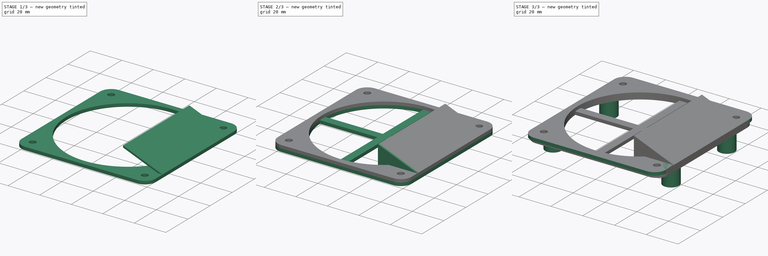
[diagram: build sequence overview — one tinted view per stage of 3, left to right]
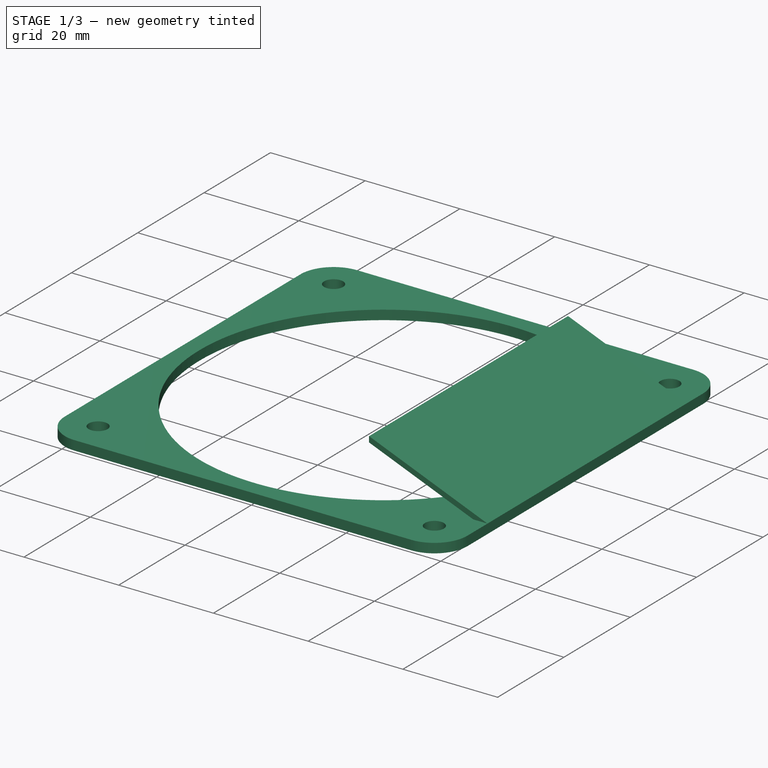
[diagram: stage 1 of 3 — iso view after this stage's code; geometry added in this stage tinted green]
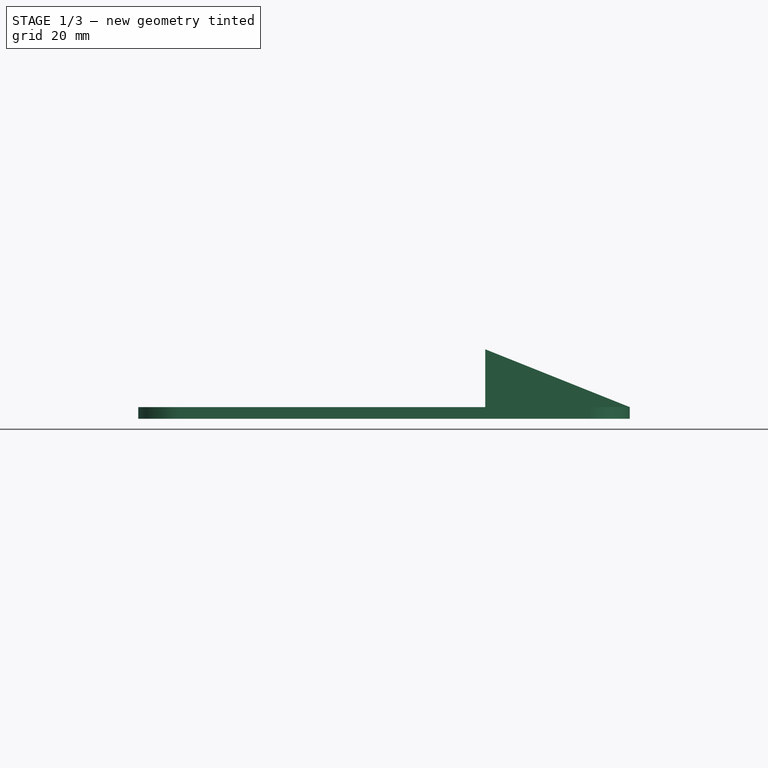
[diagram: stage 1 of 3 — front view after this stage's code; geometry added in this stage tinted green]
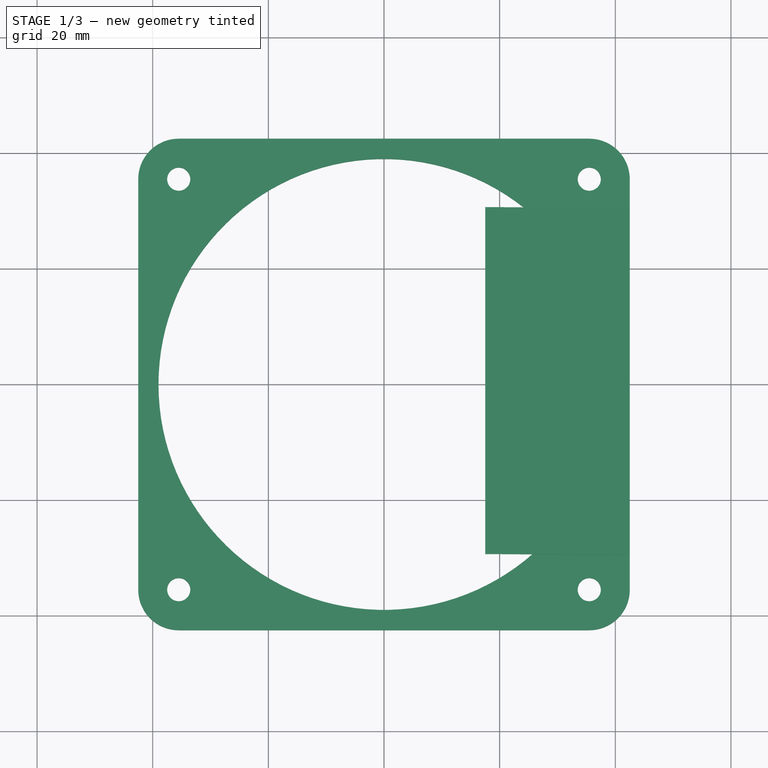
[diagram: stage 1 of 3 — top view after this stage's code; geometry added in this stage tinted green]
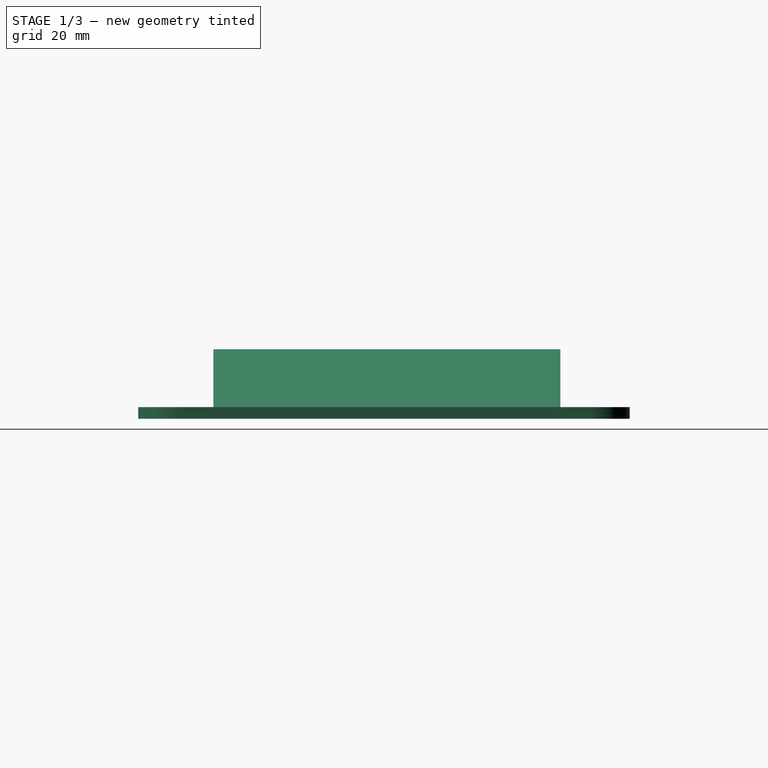
[diagram: stage 1 of 3 — right view after this stage's code; geometry added in this stage tinted green]
FCSTD DOCUMENT  (FreeCAD 1.0R39109 (Git))
Label: Fan8
License: All rights reserved
LicenseURL: http://en.wikipedia.org/wiki/All_rights_reserved
objects: Sketcher::SketchObject×7, PartDesign::Pad×7, PartDesign::Body×3, PartDesign::LinearPattern×1
note: 40 computed .brp shape members not serialized (recipe doc carries the construction recipe); baked Part::Feature solids carry a one-line shape summary decoded from their .brp

FEATURE [PartDesign::Body] Body
  AllowCompound = false
  Group = -> [Sketch,Pad,Sketch001,Pad001]
  Origin = -> Origin
  Placement = pos=(0,0,-4) rot=(0,0,1;1.5708rad)
  Tip = -> Pad001
FEATURE [Sketcher::SketchObject] Sketch002
  ArcFitTolerance = 1e-06
  AttachmentSupport = -> [XZ_Plane001]
  FullyConstrained = true
  MakeInternals = false
  MapMode = 5
  Placement = pos=(0,0,0) rot=(1,0,0;1.5708rad)
  sketch-geometry (4):
    g0: LineSegment StartX=17.5 StartY=12 StartZ=0 EndX=42.5 EndY=2 EndZ=0
    g1: LineSegment StartX=17.5 StartY=10.8 StartZ=0 EndX=42.5 EndY=0.8 EndZ=0
    g2: LineSegment StartX=17.5 StartY=12 StartZ=0 EndX=17.5 EndY=10.8 EndZ=0
    g3: LineSegment StartX=42.5 StartY=0.8 StartZ=0 EndX=42.5 EndY=2 EndZ=0
  constraints (12):
    c: Parallel(g0,g1)
    c: DistanceY(g1,g0) = 1.2
    c: DistanceY(g-1,g0) = 12
    c: DistanceX(g-1,g0) = 42.5
    c: Coincident(g2,g0)
    c: Coincident(g2,g1)
    c: Vertical(g2)
    c: Coincident(g3,g0)
    c: DistanceX(g0,g0) = 25
    c: Coincident(g1,g3)
    c: Vertical(g3)
    c: DistanceY(g-1,g0) = 2
FEATURE [Sketcher::SketchObject] Sketch003
  ArcFitTolerance = 1e-06
  AttachmentSupport = -> [XY_Plane001]
  FullyConstrained = true
  MakeInternals = false
  MapMode = 5
  sketch-geometry (17):
    g0: LineSegment [constr] StartX=-35.5 StartY=35.5 StartZ=0 EndX=-35.5 EndY=-35.5 EndZ=0
    g1: LineSegment [constr] StartX=-35.5 StartY=-35.5 StartZ=0 EndX=35.5 EndY=-35.5 EndZ=0
    g2: LineSegment [constr] StartX=35.5 StartY=-35.5 StartZ=0 EndX=35.5 EndY=35.5 EndZ=0
    g3: LineSegment [constr] StartX=35.5 StartY=35.5 StartZ=0 EndX=-35.5 EndY=35.5 EndZ=0
    g4: Circle CenterX=-35.5 CenterY=35.5 CenterZ=0 NormalX=0 NormalY=0 NormalZ=1 AngleXU=0 Radius=2
    g5: Circle CenterX=35.5 CenterY=35.5 CenterZ=0 NormalX=0 NormalY=0 NormalZ=1 AngleXU=0 Radius=2
    g6: Circle CenterX=35.5 CenterY=-35.5 CenterZ=0 NormalX=0 NormalY=0 NormalZ=1 AngleXU=0 Radius=2
    g7: Circle CenterX=-35.5 CenterY=-35.5 CenterZ=0 NormalX=0 NormalY=0 NormalZ=1 AngleXU=0 Radius=2
    g8: LineSegment StartX=-42.5 StartY=35.5 StartZ=0 EndX=-42.5 EndY=-35.5 EndZ=0
    g9: LineSegment StartX=-35.5 StartY=-42.5 StartZ=0 EndX=35.5 EndY=-42.5 EndZ=0
    g10: LineSegment StartX=42.5 StartY=-35.5 StartZ=0 EndX=42.5 EndY=35.5 EndZ=0
    g11: LineSegment StartX=35.5 StartY=42.5 StartZ=0 EndX=-35.5 EndY=42.5 EndZ=0
    g12: ArcOfCircle CenterX=-35.5 CenterY=35.5 CenterZ=0 NormalX=0 NormalY=0 NormalZ=1 AngleXU=0 Radius=7 StartAngle=1.5708 EndAngle=3.14159
    g13: ArcOfCircle CenterX=35.5 CenterY=35.5 CenterZ=0 NormalX=0 NormalY=0 NormalZ=1 AngleXU=0 Radius=7 StartAngle=-3.9551e-12 EndAngle=1.5708
    g14: ArcOfCircle CenterX=35.5 CenterY=-35.5 CenterZ=0 NormalX=0 NormalY=0 NormalZ=1 AngleXU=0 Radius=7 StartAngle=4.71239 EndAngle=6.28319
    g15: ArcOfCircle CenterX=-35.5 CenterY=-35.5 CenterZ=0 NormalX=0 NormalY=0 NormalZ=1 AngleXU=0 Radius=7 StartAngle=3.14159 EndAngle=4.71239
    g16: Circle CenterX=0 CenterY=0 CenterZ=0 NormalX=0 NormalY=0 NormalZ=1 AngleXU=0 Radius=39
  constraints (38):
    c: Coincident(g0,g1)
    c: Coincident(g1,g2)
    c: Coincident(g2,g3)
    c: Coincident(g3,g0)
    c: Vertical(g0)
    c: Vertical(g2)
    c: Horizontal(g1)
    c: Horizontal(g3)
    c: DistanceX(g3,g3) = 71
    c: DistanceY(g2,g2) = 71
    c: Symmetric(g2,g0,g-1)
    c: Coincident(g4,g0)
    c: Coincident(g5,g2)
    c: Coincident(g6,g1)
    c: Coincident(g7,g0)
    c: Equal(g7,g4)
    c: Equal(g4,g5)
    c: Equal(g5,g6)
    c: Radius(g5) = 2
    c: Vertical(g8)
    c: Vertical(g10)
    c: Horizontal(g9)
    c: Horizontal(g11)
    c: Coincident(g12,g0)
    c: Coincident(g13,g2)
    c: Coincident(g14,g1)
    c: Coincident(g15,g0)
    c: Tangent(g13,g11) = -1.5708
    c: Tangent(g13,g10) = -1.5708
    c: Tangent(g14,g10) = -1.5708
    c: Tangent(g12,g11) = -1.5708
    c: Tangent(g12,g8) = -1.5708
    c: Tangent(g14,g9) = -1.5708
    c: Tangent(g15,g9) = -1.5708
    c: Radius(g13) = 7
    c: Coincident(g8,g15)
    c: Coincident(g16,g-1)
    c: Radius(g16) = 39
FEATURE [PartDesign::Pad] Pad002
  Direction = (0,0,1)
  Length = 2
  Length2 = 10
  Profile = -> Sketch003
  ReferenceAxis = -> Sketch003 [N_Axis]
  Suppressed = false
  Type = 0
FEATURE [PartDesign::Pad] Pad003
  BaseFeature = -> Pad002
  Direction = (0,-1,2e-16)
  Length = 59
  Length2 = 10
  Midplane = true
  Profile = -> Sketch002
  ReferenceAxis = -> Sketch002 [N_Axis]
  Suppressed = false
  Type = 0
FEATURE [PartDesign::Body] Body002  label="Inter"
  AllowCompound = false
  Group = -> [Sketch004,Pad004,Sketch005,Pad005]
  Origin = -> Origin002
  Tip = -> Pad005
FEATURE [Sketcher::SketchObject] Sketch006
  ArcFitTolerance = 1e-06
  AttachmentOffset = pos=(0,0,-30) rot=(0,0,1;0rad)
  AttachmentSupport = -> [XZ_Plane001]
  FullyConstrained = true
  MakeInternals = false
  MapMode = 5
  Placement = pos=(0,30,-6.7e-15) rot=(1,0,0;1.5708rad)
  sketch-geometry (4):
    g0: LineSegment StartX=17.5 StartY=12 StartZ=0 EndX=42.5 EndY=2 EndZ=0
    g1: LineSegment StartX=17.5 StartY=12 StartZ=0 EndX=17.5 EndY=0 EndZ=0
    g2: LineSegment StartX=42.5 StartY=2 StartZ=0 EndX=42.5 EndY=0 EndZ=0
    g3: LineSegment StartX=17.5 StartY=0 StartZ=0 EndX=42.5 EndY=0 EndZ=0
  constraints (12):
    c: DistanceY(g-1,g0) = 2
    c: DistanceY(g-1,g0) = 12
    c: DistanceX(g-1,g0) = 42.5
    c: DistanceX(g0,g0) = 25
    c: Coincident(g1,g0)
    c: Vertical(g1)
    c: Coincident(g2,g0)
    c: Vertical(g2)
    c: Coincident(g3,g1)
    c: Coincident(g3,g2)
    c: Horizontal(g3)
    c: DistanceY(g-1,g1) = 0
FEATURE [PartDesign::Pad] Pad006
  BaseFeature = -> Pad003
  Direction = (0,-1,2e-16)
  Length = 1
  Length2 = 10
  Midplane = true
  Profile = -> Sketch006
  ReferenceAxis = -> Sketch006 [N_Axis]
  Suppressed = false
  Type = 0
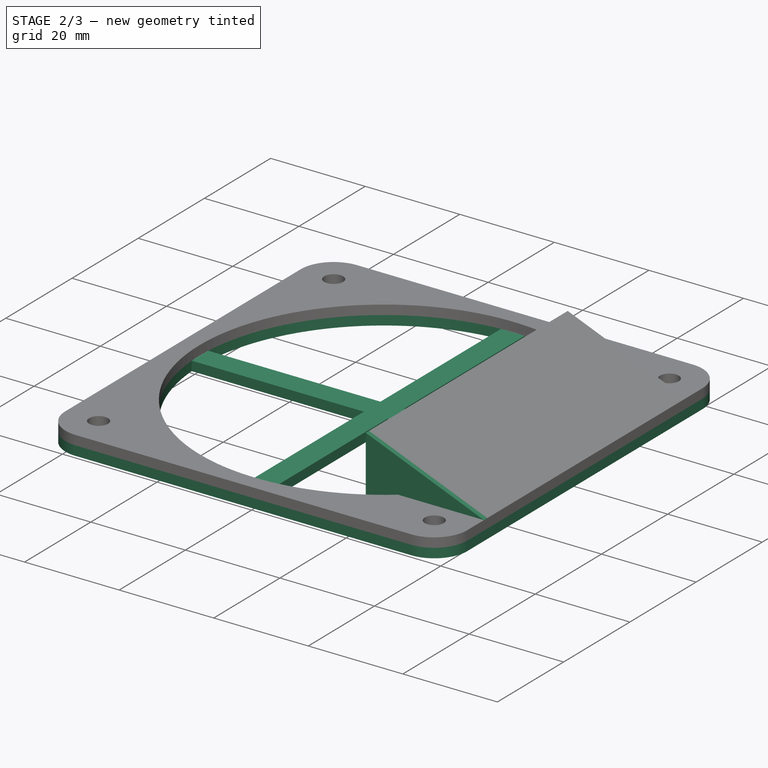
[diagram: stage 2 of 3 — iso view after this stage's code; geometry added in this stage tinted green]
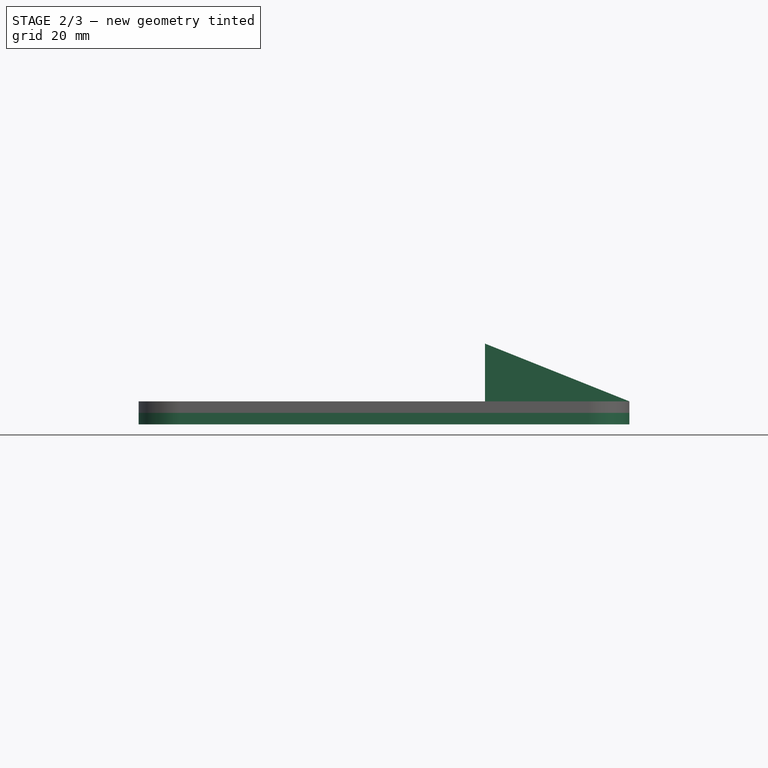
[diagram: stage 2 of 3 — front view after this stage's code; geometry added in this stage tinted green]
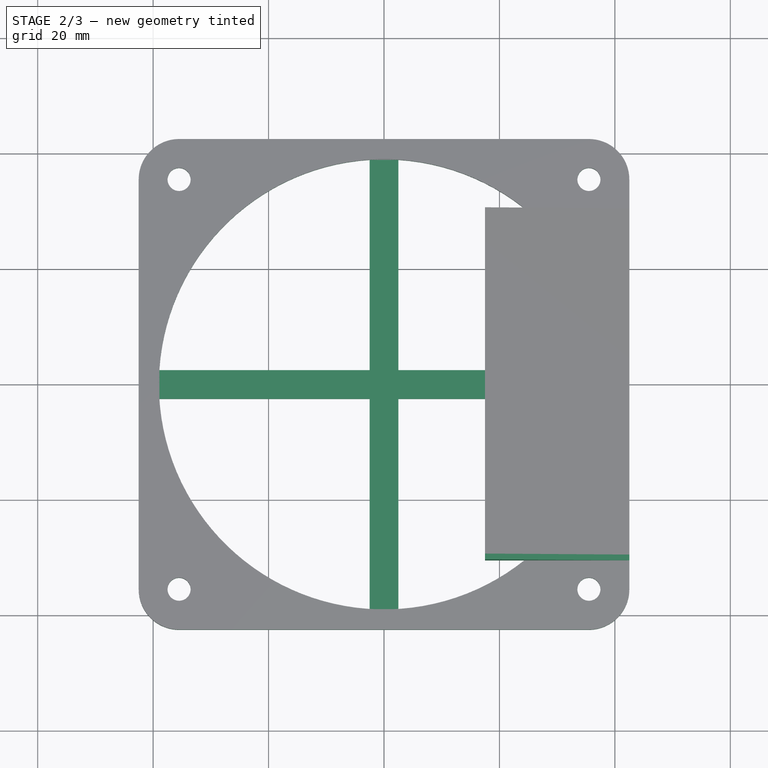
[diagram: stage 2 of 3 — top view after this stage's code; geometry added in this stage tinted green]
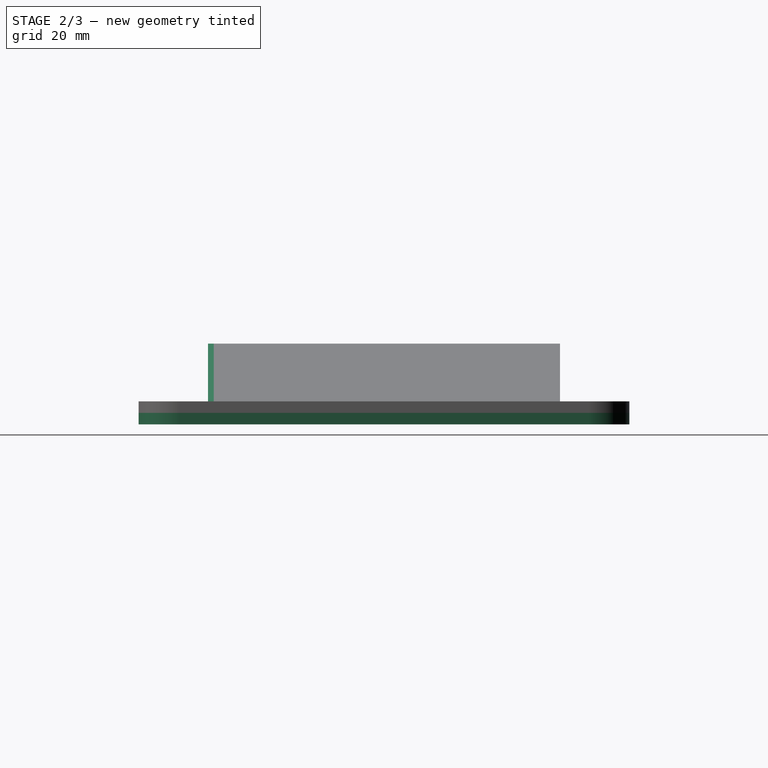
[diagram: stage 2 of 3 — right view after this stage's code; geometry added in this stage tinted green]
FEATURE [Sketcher::SketchObject] Sketch004
  ArcFitTolerance = 1e-06
  AttachmentSupport = -> [XY_Plane002]
  FullyConstrained = true
  MakeInternals = false
  MapMode = 5
  sketch-geometry (36):
    g0: LineSegment [constr] StartX=-35.5 StartY=35.5 StartZ=0 EndX=-35.5 EndY=-35.5 EndZ=0
    g1: LineSegment [constr] StartX=-35.5 StartY=-35.5 StartZ=0 EndX=35.5 EndY=-35.5 EndZ=0
    g2: LineSegment [constr] StartX=35.5 StartY=-35.5 StartZ=0 EndX=35.5 EndY=35.5 EndZ=0
    g3: LineSegment [constr] StartX=35.5 StartY=35.5 StartZ=0 EndX=-35.5 EndY=35.5 EndZ=0
    g4: Circle CenterX=-35.5 CenterY=35.5 CenterZ=0 NormalX=0 NormalY=0 NormalZ=1 AngleXU=0 Radius=2
    g5: Circle CenterX=35.5 CenterY=35.5 CenterZ=0 NormalX=0 NormalY=0 NormalZ=1 AngleXU=0 Radius=2
    g6: Circle CenterX=35.5 CenterY=-35.5 CenterZ=0 NormalX=0 NormalY=0 NormalZ=1 AngleXU=0 Radius=2
    g7: Circle CenterX=-35.5 CenterY=-35.5 CenterZ=0 NormalX=0 NormalY=0 NormalZ=1 AngleXU=0 Radius=2
    g8: LineSegment StartX=-42.5 StartY=35.5 StartZ=0 EndX=-42.5 EndY=-35.5 EndZ=0
    g9: LineSegment StartX=-35.5 StartY=-42.5 StartZ=0 EndX=35.5 EndY=-42.5 EndZ=0
    g10: LineSegment StartX=42.5 StartY=-35.5 StartZ=0 EndX=42.5 EndY=35.5 EndZ=0
    g11: LineSegment StartX=35.5 StartY=42.5 StartZ=0 EndX=-35.5 EndY=42.5 EndZ=0
    g12: ArcOfCircle CenterX=-35.5 CenterY=35.5 CenterZ=0 NormalX=0 NormalY=0 NormalZ=1 AngleXU=0 Radius=7 StartAngle=1.5708 EndAngle=3.14159
    g13: ArcOfCircle CenterX=35.5 CenterY=35.5 CenterZ=0 NormalX=0 NormalY=0 NormalZ=1 AngleXU=0 Radius=7 StartAngle=0 EndAngle=1.5708
    g14: ArcOfCircle CenterX=35.5 CenterY=-35.5 CenterZ=0 NormalX=0 NormalY=0 NormalZ=1 AngleXU=0 Radius=7 StartAngle=4.71239 EndAngle=6.28319
    g15: ArcOfCircle CenterX=-35.5 CenterY=-35.5 CenterZ=0 NormalX=0 NormalY=0 NormalZ=1 AngleXU=0 Radius=7 StartAngle=3.14159 EndAngle=4.71239
    g16: LineSegment [constr] StartX=-35.5 StartY=35.5 StartZ=0 EndX=-35.5 EndY=-35.5 EndZ=0
    g17: LineSegment [constr] StartX=-35.5 StartY=-35.5 StartZ=0 EndX=35.5 EndY=-35.5 EndZ=0
    g18: LineSegment [constr] StartX=35.5 StartY=-35.5 StartZ=0 EndX=35.5 EndY=35.5 EndZ=0
    g19: LineSegment [constr] StartX=35.5 StartY=35.5 StartZ=0 EndX=-35.5 EndY=35.5 EndZ=0
    g20: LineSegment StartX=-2.5 StartY=38.9198 StartZ=0 EndX=-2.5 EndY=2.5 EndZ=0
    g21: LineSegment StartX=2.5 StartY=2.5 StartZ=0 EndX=2.5 EndY=38.9198 EndZ=0
    g22: LineSegment StartX=2.5 StartY=-2.5 StartZ=0 EndX=38.9198 EndY=-2.5 EndZ=0
    g23: LineSegment StartX=38.9198 StartY=2.5 StartZ=0 EndX=2.5 EndY=2.5 EndZ=0
    g24: LineSegment StartX=-2.5 StartY=-2.5 StartZ=0 EndX=-2.5 EndY=-38.9198 EndZ=0
    g25: LineSegment StartX=2.5 StartY=-38.9198 StartZ=0 EndX=2.5 EndY=-2.5 EndZ=0
    g26: LineSegment StartX=-2.5 StartY=2.5 StartZ=0 EndX=-38.9198 EndY=2.5 EndZ=0
    g27: LineSegment StartX=-38.9198 StartY=-2.5 StartZ=0 EndX=-2.5 EndY=-2.5 EndZ=0
    g28: LineSegment [constr] StartX=-2.5 StartY=2.5 StartZ=0 EndX=-2.5 EndY=-2.5 EndZ=0
    g29: LineSegment [constr] StartX=-2.5 StartY=-2.5 StartZ=0 EndX=2.5 EndY=-2.5 EndZ=0
    g30: LineSegment [constr] StartX=2.5 StartY=-2.5 StartZ=0 EndX=2.5 EndY=2.5 EndZ=0
    g31: LineSegment [constr] StartX=2.5 StartY=2.5 StartZ=0 EndX=-2.5 EndY=2.5 EndZ=0
    g32: ArcOfCircle CenterX=0 CenterY=0 CenterZ=0 NormalX=0 NormalY=0 NormalZ=1 AngleXU=0 Radius=39 StartAngle=4.77654 EndAngle=6.21904
    g33: ArcOfCircle CenterX=0 CenterY=0 CenterZ=0 NormalX=0 NormalY=0 NormalZ=1 AngleXU=0 Radius=39 StartAngle=3.20574 EndAngle=4.64824
    g34: ArcOfCircle CenterX=0 CenterY=0 CenterZ=0 NormalX=0 NormalY=0 NormalZ=1 AngleXU=0 Radius=39 StartAngle=1.63494 EndAngle=3.07745
    g35: ArcOfCircle CenterX=0 CenterY=0 CenterZ=0 NormalX=0 NormalY=0 NormalZ=1 AngleXU=0 Radius=39 StartAngle=0.0641465 EndAngle=1.50665
  constraints (90):
    c: Coincident(g0,g1)
    c: Coincident(g1,g2)
    c: Coincident(g2,g3)
    c: Coincident(g3,g0)
    c: Vertical(g0)
    c: Vertical(g2)
    c: Horizontal(g1)
    c: Horizontal(g3)
    c: DistanceX(g3,g3) = 71
    c: DistanceY(g2,g2) = 71
    c: Symmetric(g2,g0,g-1)
    c: Coincident(g4,g0)
    c: Coincident(g5,g2)
    c: Coincident(g6,g1)
    c: Coincident(g7,g0)
    c: Equal(g7,g4)
    c: Equal(g4,g5)
    c: Equal(g5,g6)
    c: Radius(g5) = 2
    c: Vertical(g8)
    c: Vertical(g10)
    c: Horizontal(g9)
    c: Horizontal(g11)
    c: Tangent(g13,g11) = -1.5708
    c: Tangent(g13,g10) = -1.5708
    c: Tangent(g14,g10) = -1.5708
    c: Tangent(g12,g11) = -1.5708
    c: Tangent(g12,g8) = -1.5708
    c: Tangent(g14,g9) = -1.5708
    c: Tangent(g15,g9) = -1.5708
    c: Radius(g13) = 7
    c: Coincident(g8,g15)
    c: Coincident(g16,g17)
    c: Coincident(g17,g18)
    c: Coincident(g18,g19)
    c: Coincident(g19,g16)
    c: Vertical(g16)
    c: Vertical(g18)
    c: Horizontal(g17)
    c: Horizontal(g19)
    c: Coincident(g16,g12)
    c: Coincident(g17,g14)
    c: Coincident(g13,g18)
    c: Coincident(g15,g16)
    c: DistanceX(g19,g19) = 71
    c: DistanceY(g18,g18) = 71
    c: Vertical(g20)
    c: Vertical(g21)
    c: Horizontal(g22)
    c: Horizontal(g23)
    c: Vertical(g24)
    c: Vertical(g25)
    c: Horizontal(g26)
    c: Horizontal(g27)
    c: Coincident(g26,g20)
    c: Coincident(g21,g23)
    c: Coincident(g22,g25)
    c: Coincident(g24,g27)
    c: Coincident(g28,g29)
    c: Coincident(g29,g30)
    c: Coincident(g30,g31)
    c: Coincident(g31,g28)
    c: Vertical(g28)
    c: Vertical(g30)
    c: Horizontal(g29)
    c: Horizontal(g31)
    c: Coincident(g28,g20)
    c: Coincident(g29,g22)
    c: Coincident(g21,g30)
    c: Symmetric(g20,g22,g-1)
    c: Distance(g31) = 5
    c: Distance(g30) = 5
    c: Coincident(g24,g28)
    c: Coincident(g12,g0)
    c: Coincident(g32,g-1)
    c: Coincident(g32,g22)
    c: Coincident(g32,g25)
    c: Coincident(g33,g32)
    c: Coincident(g33,g24)
    c: Coincident(g33,g27)
    c: Coincident(g34,g32)
    c: Coincident(g34,g26)
    c: Coincident(g34,g20)
    c: Equal(g34,g33)
    c: Equal(g33,g32)
    c: Coincident(g35,g32)
    c: Coincident(g35,g21)
    c: Coincident(g35,g23)
    c: Equal(g35,g33)
    c: Radius(g35) = 39
FEATURE [PartDesign::Pad] Pad004
  Direction = (0,0,1)
  Length = 2
  Length2 = 10
  Profile = -> Sketch004
  ReferenceAxis = -> Sketch004 [N_Axis]
  Reversed = true
  Suppressed = false
  Type = 0
FEATURE [PartDesign::LinearPattern] LinearPattern
  BaseFeature = -> Pad006
  Direction = -> Sketch006 [N_Axis]
  Length = 60
  Mode = 0
  Occurrences = 7
  Offset = 10
  Originals = -> [Pad006]
  Suppressed = false
  TransformMode = 0
FEATURE [PartDesign::Body] Body001  label="Vent"
  AllowCompound = false
  Group = -> [Sketch002,Sketch003,Pad002,Pad003,Sketch006,Pad006,LinearPattern]
  Origin = -> Origin001
  Placement = pos=(0,0,2) rot=(0,0,1;0rad)
  Tip = -> LinearPattern
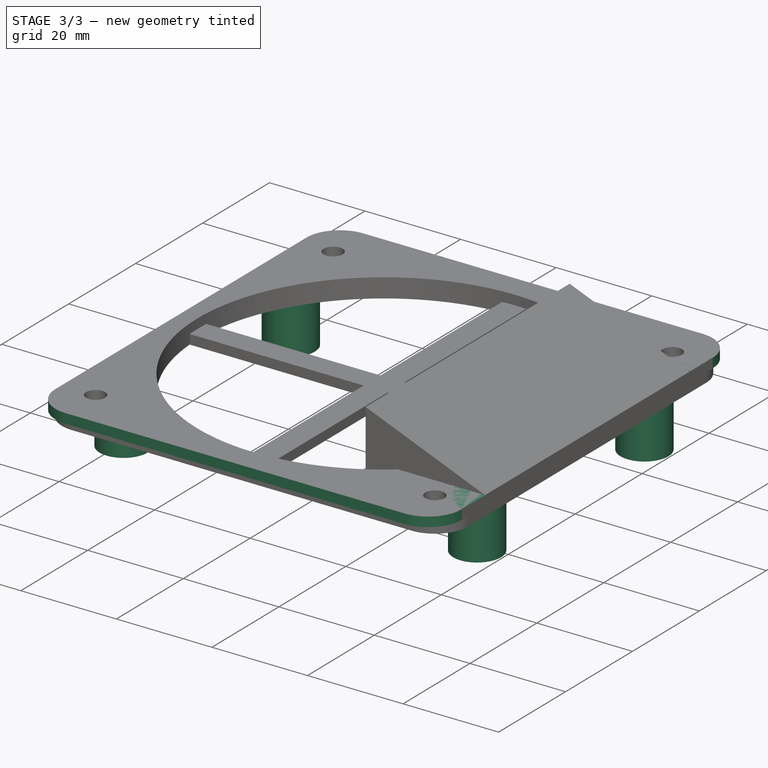
[diagram: stage 3 of 3 — iso view after this stage's code; geometry added in this stage tinted green]
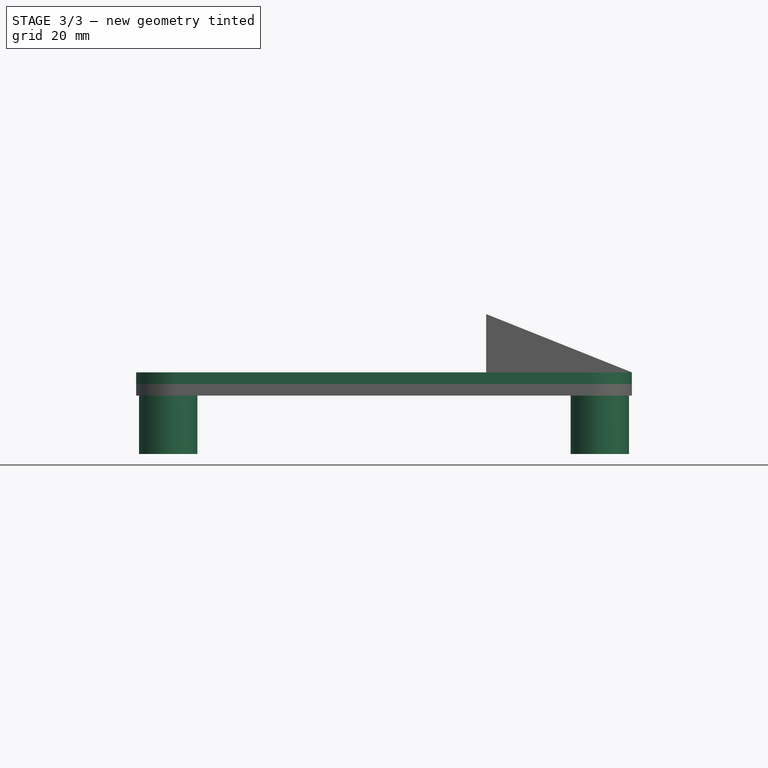
[diagram: stage 3 of 3 — front view after this stage's code; geometry added in this stage tinted green]
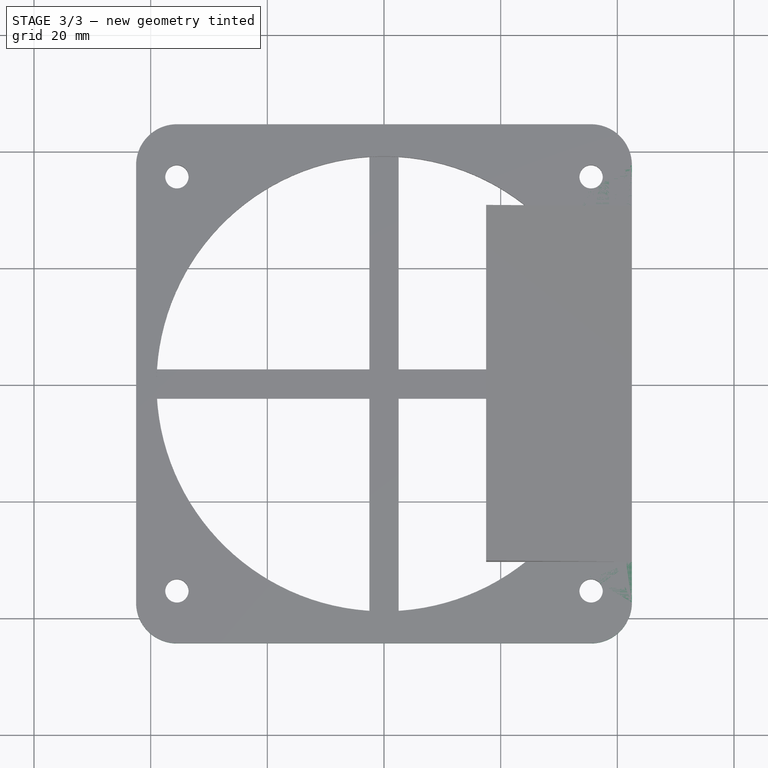
[diagram: stage 3 of 3 — top view after this stage's code; geometry added in this stage tinted green]
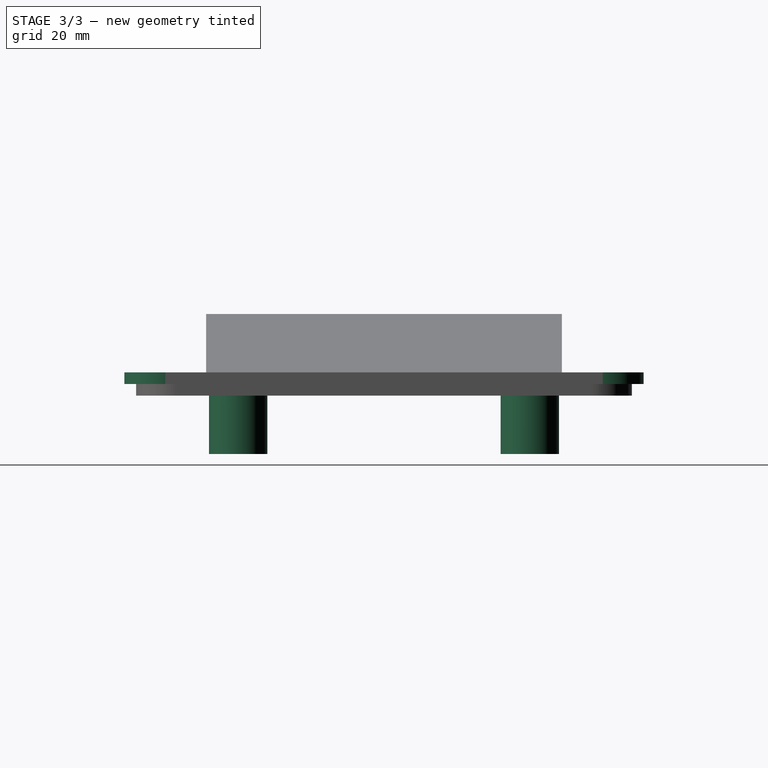
[diagram: stage 3 of 3 — right view after this stage's code; geometry added in this stage tinted green]
FEATURE [Sketcher::SketchObject] Sketch
  ArcFitTolerance = 1e-06
  AttachmentSupport = -> [XY_Plane]
  FullyConstrained = true
  MakeInternals = false
  MapMode = 5
  sketch-geometry (21):
    g0: LineSegment [constr] StartX=-35.5 StartY=35.5 StartZ=0 EndX=-35.5 EndY=-35.5 EndZ=0
    g1: LineSegment [constr] StartX=-35.5 StartY=-35.5 StartZ=0 EndX=35.5 EndY=-35.5 EndZ=0
    g2: LineSegment [constr] StartX=35.5 StartY=-35.5 StartZ=0 EndX=35.5 EndY=35.5 EndZ=0
    g3: LineSegment [constr] StartX=35.5 StartY=35.5 StartZ=0 EndX=-35.5 EndY=35.5 EndZ=0
    g4: Circle CenterX=-35.5 CenterY=35.5 CenterZ=0 NormalX=0 NormalY=0 NormalZ=1 AngleXU=0 Radius=2
    g5: Circle CenterX=35.5 CenterY=35.5 CenterZ=0 NormalX=0 NormalY=0 NormalZ=1 AngleXU=0 Radius=2
    g6: Circle CenterX=35.5 CenterY=-35.5 CenterZ=0 NormalX=0 NormalY=0 NormalZ=1 AngleXU=0 Radius=2
    g7: Circle CenterX=-35.5 CenterY=-35.5 CenterZ=0 NormalX=0 NormalY=0 NormalZ=1 AngleXU=0 Radius=2
    g8: LineSegment StartX=-42.5 StartY=37.5 StartZ=0 EndX=-42.5 EndY=-37.5 EndZ=0
    g9: LineSegment StartX=-35.5 StartY=-44.5 StartZ=0 EndX=35.5 EndY=-44.5 EndZ=0
    g10: LineSegment StartX=42.5 StartY=-37.5 StartZ=0 EndX=42.5 EndY=37.5 EndZ=0
    g11: LineSegment StartX=35.5 StartY=44.5 StartZ=0 EndX=-35.5 EndY=44.5 EndZ=0
    g12: ArcOfCircle CenterX=-35.5 CenterY=37.5 CenterZ=0 NormalX=0 NormalY=0 NormalZ=1 AngleXU=0 Radius=7 StartAngle=1.5708 EndAngle=3.14159
    g13: ArcOfCircle CenterX=35.5 CenterY=37.5 CenterZ=0 NormalX=0 NormalY=0 NormalZ=1 AngleXU=0 Radius=7 StartAngle=0 EndAngle=1.5708
    g14: ArcOfCircle CenterX=35.5 CenterY=-37.5 CenterZ=0 NormalX=0 NormalY=0 NormalZ=1 AngleXU=0 Radius=7 StartAngle=4.71239 EndAngle=6.28319
    g15: ArcOfCircle CenterX=-35.5 CenterY=-37.5 CenterZ=0 NormalX=0 NormalY=0 NormalZ=1 AngleXU=0 Radius=7 StartAngle=3.14159 EndAngle=4.71239
    g16: Circle CenterX=0 CenterY=0 CenterZ=0 NormalX=0 NormalY=0 NormalZ=1 AngleXU=0 Radius=39
    g17: LineSegment [constr] StartX=-35.5 StartY=37.5 StartZ=0 EndX=-35.5 EndY=-37.5 EndZ=0
    g18: LineSegment [constr] StartX=-35.5 StartY=-37.5 StartZ=0 EndX=35.5 EndY=-37.5 EndZ=0
    g19: LineSegment [constr] StartX=35.5 StartY=-37.5 StartZ=0 EndX=35.5 EndY=37.5 EndZ=0
    g20: LineSegment [constr] StartX=35.5 StartY=37.5 StartZ=0 EndX=-35.5 EndY=37.5 EndZ=0
  constraints (49):
    c: Coincident(g0,g1)
    c: Coincident(g1,g2)
    c: Coincident(g2,g3)
    c: Coincident(g3,g0)
    c: Vertical(g0)
    c: Vertical(g2)
    c: Horizontal(g1)
    c: Horizontal(g3)
    c: DistanceX(g3,g3) = 71
    c: DistanceY(g2,g2) = 71
    c: Symmetric(g2,g0,g-1)
    c: Coincident(g4,g0)
    c: Coincident(g5,g2)
    c: Coincident(g6,g1)
    c: Coincident(g7,g0)
    c: Equal(g7,g4)
    c: Equal(g4,g5)
    c: Equal(g5,g6)
    c: Radius(g5) = 2
    c: Vertical(g8)
    c: Vertical(g10)
    c: Horizontal(g9)
    c: Horizontal(g11)
    c: Tangent(g13,g11) = -1.5708
    c: Tangent(g13,g10) = -1.5708
    c: Tangent(g14,g10) = -1.5708
    c: Tangent(g12,g11) = -1.5708
    c: Tangent(g12,g8) = -1.5708
    c: Tangent(g14,g9) = -1.5708
    c: Tangent(g15,g9) = -1.5708
    c: Radius(g13) = 7
    c: Radius(g16) = 39
    c: Coincident(g8,g15)
    c: Coincident(g16,g-1)
    c: Coincident(g17,g18)
    c: Coincident(g18,g19)
    c: Coincident(g19,g20)
    c: Coincident(g20,g17)
    c: Vertical(g17)
    c: Vertical(g19)
    c: Horizontal(g18)
    c: Horizontal(g20)
    c: Coincident(g17,g12)
    c: Coincident(g18,g14)
    c: Coincident(g13,g19)
    c: Coincident(g15,g17)
    c: Symmetric(g15,g13,g16)
    c: DistanceX(g20,g20) = 71
    c: DistanceY(g19,g19) = 75
FEATURE [PartDesign::Pad] Pad
  Direction = (0,0,1)
  Length = 2
  Length2 = 10
  Profile = -> Sketch
  ReferenceAxis = -> Sketch [N_Axis]
  Suppressed = false
  Type = 0
FEATURE [Sketcher::SketchObject] Sketch001
  ArcFitTolerance = 1e-06
  AttachmentSupport = -> [XY_Plane]
  FullyConstrained = true
  MakeInternals = false
  MapMode = 5
  sketch-geometry (8):
    g0: LineSegment [constr] StartX=-37 StartY=25 StartZ=0 EndX=-37 EndY=-25 EndZ=0
    g1: LineSegment [constr] StartX=-37 StartY=-25 StartZ=0 EndX=37 EndY=-25 EndZ=0
    g2: LineSegment [constr] StartX=37 StartY=-25 StartZ=0 EndX=37 EndY=25 EndZ=0
    g3: LineSegment [constr] StartX=37 StartY=25 StartZ=0 EndX=-37 EndY=25 EndZ=0
    g4: Circle CenterX=-37 CenterY=25 CenterZ=0 NormalX=0 NormalY=0 NormalZ=1 AngleXU=0 Radius=5
    g5: Circle CenterX=37 CenterY=25 CenterZ=0 NormalX=0 NormalY=0 NormalZ=1 AngleXU=0 Radius=5
    g6: Circle CenterX=37 CenterY=-25 CenterZ=0 NormalX=0 NormalY=0 NormalZ=1 AngleXU=0 Radius=5
    g7: Circle CenterX=-37 CenterY=-25 CenterZ=0 NormalX=0 NormalY=0 NormalZ=1 AngleXU=0 Radius=5
  constraints (19):
    c: Coincident(g0,g1)
    c: Coincident(g1,g2)
    c: Coincident(g2,g3)
    c: Coincident(g3,g0)
    c: Vertical(g0)
    c: Vertical(g2)
    c: Horizontal(g1)
    c: Horizontal(g3)
    c: DistanceX(g3,g3) = 74
    c: DistanceY(g2,g2) = 50
    c: Symmetric(g2,g0,g-1)
    c: Coincident(g4,g0)
    c: Coincident(g5,g2)
    c: Coincident(g6,g1)
    c: Coincident(g7,g0)
    c: Equal(g4,g5)
    c: Equal(g5,g6)
    c: Equal(g6,g7)
    c: Radius(g5) = 5
FEATURE [PartDesign::Pad] Pad001
  BaseFeature = -> Pad
  Direction = (0,0,1)
  Length = 12
  Length2 = 10
  Profile = -> Sketch001
  ReferenceAxis = -> Sketch001 [N_Axis]
  Reversed = true
  Suppressed = false
  Type = 0
FEATURE [Sketcher::SketchObject] Sketch005
  ArcFitTolerance = 1e-06
  AttachmentSupport = -> [XY_Plane002]
  FullyConstrained = true
  MakeInternals = false
  MapMode = 5
  sketch-geometry (12):
    g0: LineSegment [constr] StartX=-35.5 StartY=35.5 StartZ=0 EndX=-35.5 EndY=-35.5 EndZ=0
    g1: LineSegment [constr] StartX=-35.5 StartY=-35.5 StartZ=0 EndX=35.5 EndY=-35.5 EndZ=0
    g2: LineSegment [constr] StartX=35.5 StartY=-35.5 StartZ=0 EndX=35.5 EndY=35.5 EndZ=0
    g3: LineSegment [constr] StartX=35.5 StartY=35.5 StartZ=0 EndX=-35.5 EndY=35.5 EndZ=0
    g4: Circle CenterX=-35.5 CenterY=35.5 CenterZ=0 NormalX=0 NormalY=0 NormalZ=1 AngleXU=0 Radius=2
    g5: Circle CenterX=-35.5 CenterY=35.5 CenterZ=0 NormalX=0 NormalY=0 NormalZ=1 AngleXU=0 Radius=5
    g6: Circle CenterX=35.5 CenterY=35.5 CenterZ=0 NormalX=0 NormalY=0 NormalZ=1 AngleXU=0 Radius=2
    g7: Circle CenterX=35.5 CenterY=35.5 CenterZ=0 NormalX=0 NormalY=0 NormalZ=1 AngleXU=0 Radius=5
    g8: Circle CenterX=35.5 CenterY=-35.5 CenterZ=0 NormalX=0 NormalY=0 NormalZ=1 AngleXU=0 Radius=2
    g9: Circle CenterX=35.5 CenterY=-35.5 CenterZ=0 NormalX=0 NormalY=0 NormalZ=1 AngleXU=0 Radius=5
    g10: Circle CenterX=-35.5 CenterY=-35.5 CenterZ=0 NormalX=0 NormalY=0 NormalZ=1 AngleXU=0 Radius=2
    g11: Circle CenterX=-35.5 CenterY=-35.5 CenterZ=0 NormalX=0 NormalY=0 NormalZ=1 AngleXU=0 Radius=5
  constraints (27):
    c: Coincident(g0,g1)
    c: Coincident(g1,g2)
    c: Coincident(g2,g3)
    c: Coincident(g3,g0)
    c: Vertical(g0)
    c: Vertical(g2)
    c: Horizontal(g1)
    c: Horizontal(g3)
    c: Distance(g3) = 71
    c: Distance(g2) = 71
    c: Symmetric(g0,g1,g-1)
    c: Coincident(g4,g0)
    c: Coincident(g5,g0)
    c: Coincident(g6,g2)
    c: Coincident(g7,g2)
    c: Coincident(g8,g1)
    c: Coincident(g9,g1)
    c: Coincident(g10,g0)
    c: Coincident(g11,g0)
    c: Equal(g10,g4)
    c: Equal(g4,g6)
    c: Equal(g6,g8)
    c: Radius(g6) = 2
    c: Equal(g7,g9)
    c: Equal(g9,g11)
    c: Equal(g11,g5)
    c: Radius(g7) = 5
FEATURE [PartDesign::Pad] Pad005
  BaseFeature = -> Pad004
  Direction = (0,0,1)
  Length = 2
  Length2 = 10
  Profile = -> Sketch005
  ReferenceAxis = -> Sketch005 [N_Axis]
  Suppressed = false
  Type = 0
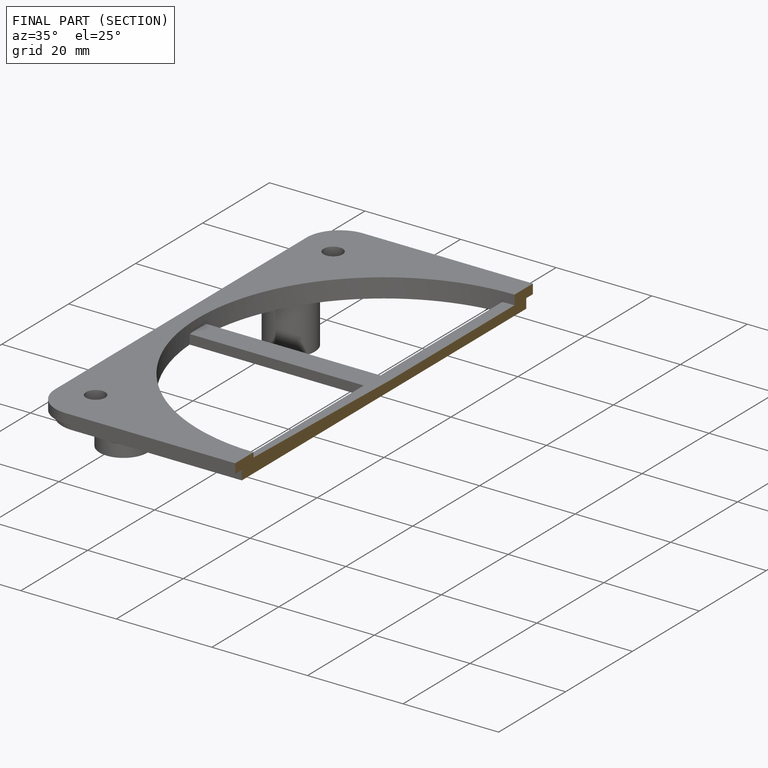
[diagram: finished part — half-section view (interior)]
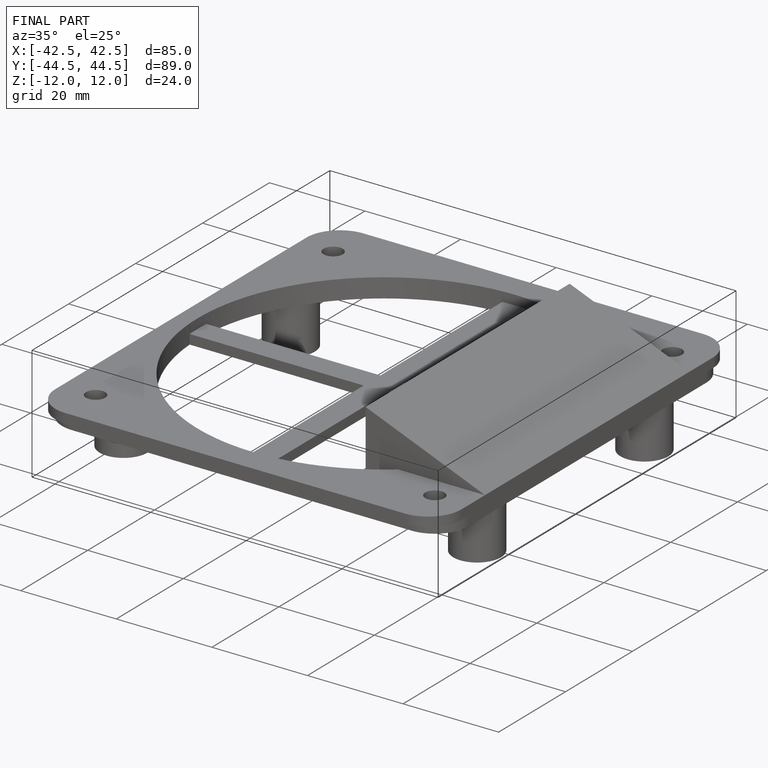
[diagram: finished part — iso view with bounding-box wireframe]
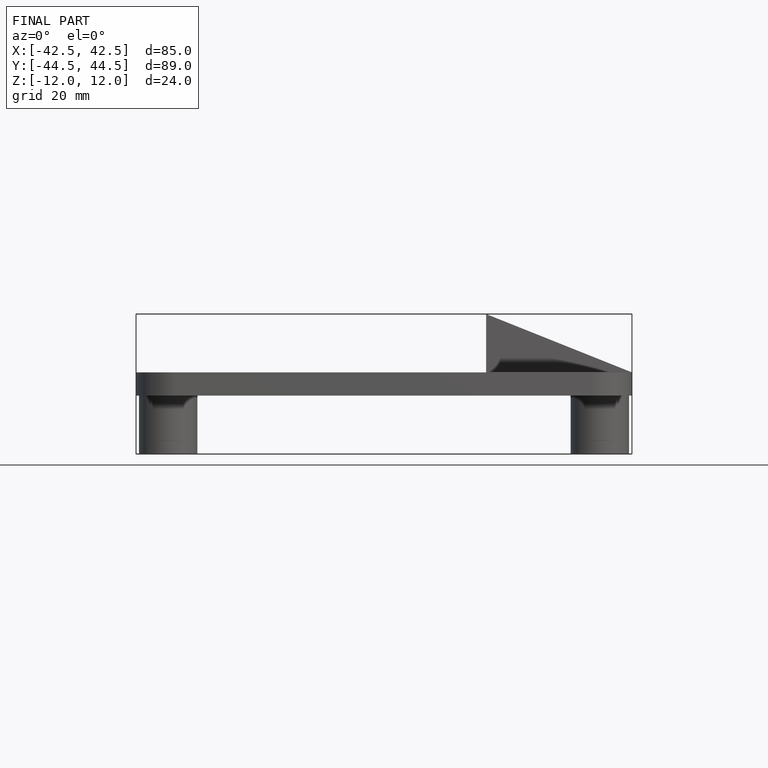
[diagram: finished part — front view with bounding-box wireframe]
